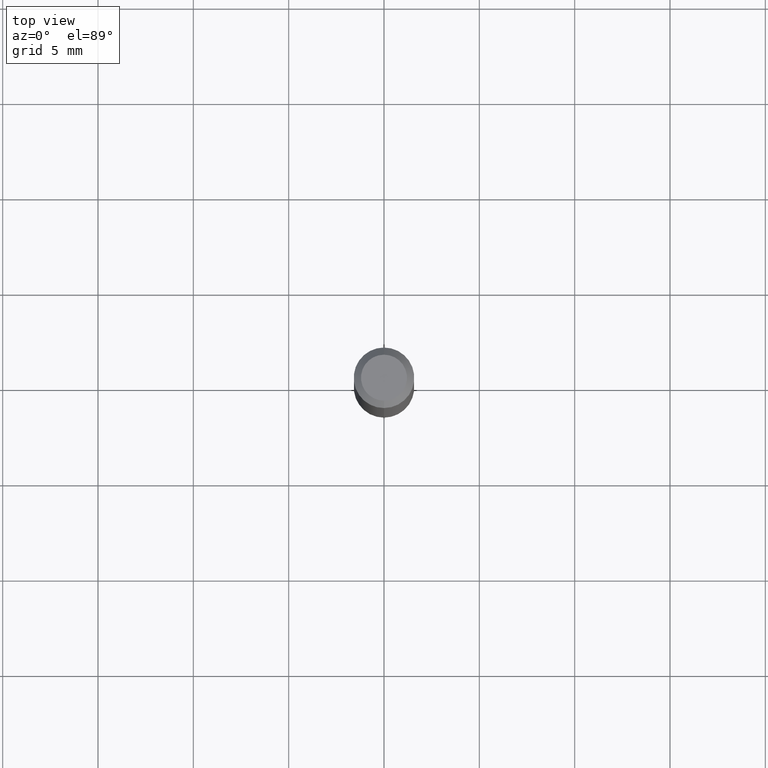
[diagram: clean part render]
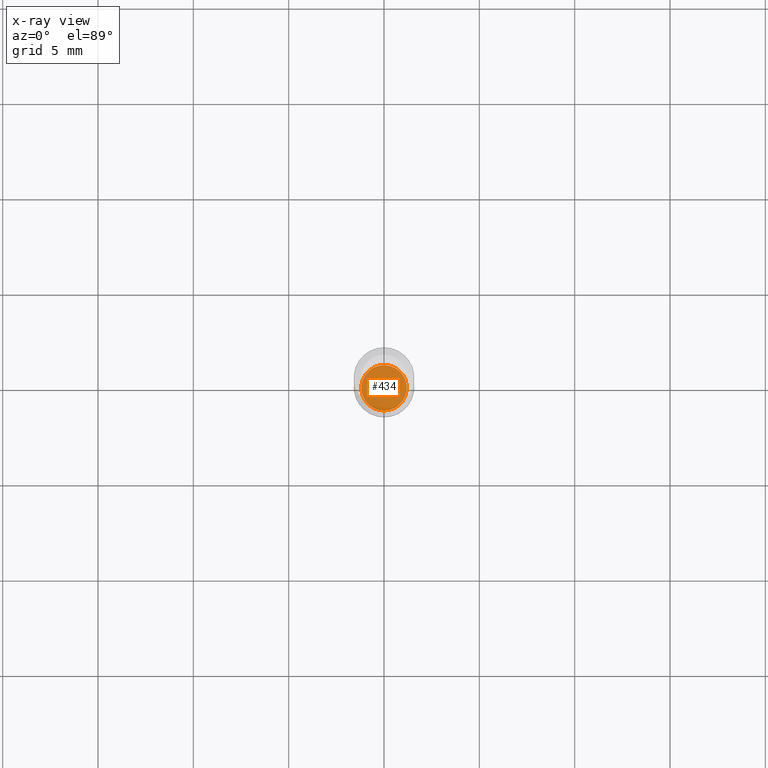
[diagram: x-ray — body ghosted, one internal face saturated and labeled with its STEP entity id]
A machine part, top view, then the same camera in x-ray: the body is ghosted and one INTERNAL B-rep face — a face not visible from any outside direction — is saturated and labeled: STEP entity #434.
In plain terms, the highlighted planar face has unit normal (-0, 0, 1).
Its self-contained STEP definition (entity closure, byte-faithful):
#2 = CIRCLE ( 'NONE', #237, 0.04699999999999999317 ) ;
#48 = EDGE_LOOP ( 'NONE', ( #336, #325 ) ) ;
#56 = VERTEX_POINT ( 'NONE', #384 ) ;
#58 = AXIS2_PLACEMENT_3D ( 'NONE', #78, #396, #157 ) ;
#70 = DIRECTION ( 'NONE',  ( -6.982962677686265922E-15, -1.000000000000000000, 3.491452876302475855E-15 ) ) ;
#78 = CARTESIAN_POINT ( 'NONE',  ( 2.971268747987335241E-29, -4.242115244707508975E-15, -1.215000000000000080 ) ) ;
#81 = AXIS2_PLACEMENT_3D ( 'NONE', #145, #464, #70 ) ;
#88 = DIRECTION ( 'NONE',  ( -6.982962677686266711E-15, -1.000000000000000000, 2.906221269855599689E-15 ) ) ;
#145 = CARTESIAN_POINT ( 'NONE',  ( 2.971268747987335241E-29, -4.242115244707508975E-15, -1.215000000000000080 ) ) ;
#157 = DIRECTION ( 'NONE',  ( -6.982962677686266711E-15, -1.000000000000000000, 2.906221269855599689E-15 ) ) ;
#192 = FACE_OUTER_BOUND ( 'NONE', #48, .T. ) ;
#226 = EDGE_CURVE ( 'NONE', #56, #357, #235, .T. ) ;
#235 = CIRCLE ( 'NONE', #58, 0.04699999999999999317 ) ;
#237 = AXIS2_PLACEMENT_3D ( 'NONE', #297, #422, #88 ) ;
#245 = EDGE_CURVE ( 'NONE', #357, #56, #2, .T. ) ;
#276 = CARTESIAN_POINT ( 'NONE',  ( 3.357314426466772183E-16, 0.04699999999999575351, -1.215000000000000302 ) ) ;
#297 = CARTESIAN_POINT ( 'NONE',  ( 2.971268747987335241E-29, -4.242115244707508975E-15, -1.215000000000000080 ) ) ;
#325 = ORIENTED_EDGE ( 'NONE', *, *, #245, .F. ) ;
#336 = ORIENTED_EDGE ( 'NONE', *, *, #226, .F. ) ;
#357 = VERTEX_POINT ( 'NONE', #276 ) ;
#384 = CARTESIAN_POINT ( 'NONE',  ( -3.281992458512247736E-16, -0.04700000000000423978, -1.215000000000000080 ) ) ;
#396 = DIRECTION ( 'NONE',  ( -2.445488681471057444E-29, 3.491452876302475855E-15, 1.000000000000000000 ) ) ;
#422 = DIRECTION ( 'NONE',  ( -2.445488681471057444E-29, 3.491452876302475855E-15, 1.000000000000000000 ) ) ;
#429 = PLANE ( 'NONE',  #81 ) ;
#434 = ADVANCED_FACE ( 'NONE', ( #192 ), #429, .F. ) ;
#464 = DIRECTION ( 'NONE',  ( -2.445488681471057163E-29, 3.491452876302475855E-15, 1.000000000000000000 ) ) ;